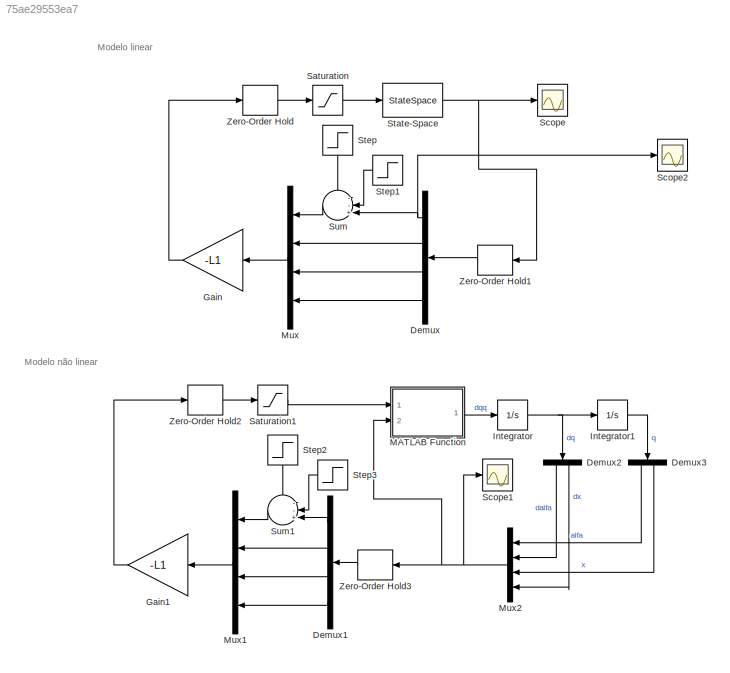
MODEL slx_75ae29553ea7
KIND model
CONFIG AbsTol = auto
CONFIG EnableMultiTasking = off
CONFIG FixedStep = auto
CONFIG MaxStep = auto
CONFIG MinStep = auto
CONFIG RelTol = 1e-3
CONFIG SampleTimeConstraint = Unconstrained
CONFIG SolverName = VariableStepAuto
CONFIG StartTime = 0.0
CONFIG StopTime = 15.0
BLOCK [Demux] Demux
  NameLocation = top
  Ports = [1, 4]
BLOCK [Demux] Demux1
  NameLocation = top
  Ports = [1, 4]
BLOCK [Demux] Demux2
  NameLocation = left
  Outputs = 2
  Ports = [1, 2]
BLOCK [Demux] Demux3
  NameLocation = left
  Outputs = 2
  Ports = [1, 2]
BLOCK [Gain] Gain
  Gain = -L1
  Multiplication = Matrix(K*u) (u vector)
  NameLocation = top
BLOCK [Gain] Gain1
  Gain = -L1
  Multiplication = Matrix(K*u) (u vector)
  NameLocation = top
BLOCK [Integrator] Integrator
  InitialCondition = qi([2,4])
  Ports = [1, 1]
BLOCK [Integrator] Integrator1
  InitialCondition = qi([1,3])
  Ports = [1, 1]
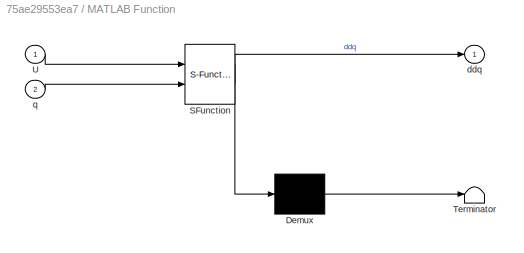
BLOCK [SubSystem] MATLAB Function
  ErrorFcn = Stateflow.Translate.translate
  PermitHierarchicalResolution = ExplicitOnly
  Ports = [2, 1]
  RequestExecContextInheritance = off
  SFBlockType = MATLAB Function
  TreatAsAtomicUnit = on
BLOCK [Demux] MATLAB Function/ Demux 
  Outputs = 1
  Ports = [1, 1]
BLOCK [S-Function] MATLAB Function/ SFunction 
  EnableBusSupport = on
  FunctionName = sf_sfun
  PortCounts = [2 2]
  Ports = [2, 2]
  SFcnIsStateOwnerBlock = off
  SFunctionDeploymentMode = off
  Tag = Stateflow S-Function 2
BLOCK [Terminator] MATLAB Function/ Terminator 
BLOCK [Inport] MATLAB Function/U
BLOCK [Outport] MATLAB Function/ddq
BLOCK [Inport] MATLAB Function/q
  Port = 2
BLOCK [Mux] Mux
  DisplayOption = bar
  NameLocation = top
  Ports = [4, 1]
BLOCK [Mux] Mux1
  DisplayOption = bar
  NameLocation = top
  Ports = [4, 1]
BLOCK [Mux] Mux2
  DisplayOption = bar
  NameLocation = top
  Ports = [4, 1]
BLOCK [Saturate] Saturation
  LowerLimit = -4.8
  UpperLimit = 4.8
BLOCK [Saturate] Saturation1
  LowerLimit = -4.8
  UpperLimit = 4.8
BLOCK [Scope] Scope
  Floating = off
  NumInputPorts = 1
  Ports = [1]
  ScopeSpecificationString = Simulink.scopes.TimeScopeBlockCfg('CurrentConfiguration', extmgr.ConfigurationSet(extmgr.Configuration('Core','General UI',true,'FigureColor',[1 1 1]),extmgr.Configuration('Core','Source UI',true),extmgr.Configuration('Sources','WiredSimulink',true),extmgr.Configuration('Visuals','Time Domain',true,'SerializedDisplays',{struct('MinYLimReal','-11.5171','MaxYLimReal','11.51899','YLabelReal','','MinY...<+1950ch>
BLOCK [Scope] Scope1
  Floating = off
  NumInputPorts = 1
  Ports = [1]
  ScopeSpecificationString = Simulink.scopes.TimeScopeBlockCfg('CurrentConfiguration', extmgr.ConfigurationSet(extmgr.Configuration('Core','General UI',true,'FigureColor',[1 1 1]),extmgr.Configuration('Core','Source UI',true),extmgr.Configuration('Sources','WiredSimulink',true,'DataLoggingVariableName','ScopeData1'),extmgr.Configuration('Visuals','Time Domain',true,'SerializedDisplays',{struct('MinYLimReal','-11.32281','MaxYL...<+1928ch>
BLOCK [Scope] Scope2
  Floating = off
  NumInputPorts = 1
  Ports = [1]
  ScopeSpecificationString = Simulink.scopes.TimeScopeBlockCfg('CurrentConfiguration', extmgr.ConfigurationSet(extmgr.Configuration('Core','General UI',true,'FigureColor',[1 1 1]),extmgr.Configuration('Core','Source UI',true),extmgr.Configuration('Sources','WiredSimulink',true,'DataLoggingVariableName','ScopeData1'),extmgr.Configuration('Visuals','Time Domain',true,'SerializedDisplays',{struct('MinYLimReal','-0.35405','MaxYLi...<+1930ch>
BLOCK [StateSpace] State-Space
  A = A
  B = B
  C = C
  D = D
  InitialCondition = qi
  Ports = [1, 1]
BLOCK [Step] Step
  After = deg2rad(10)
  NameLocation = left
  SampleTime = 0
  Time = 2
BLOCK [Step] Step1
  After = -deg2rad(10)
  NameLocation = top
  SampleTime = 0
  Time = 8
BLOCK [Step] Step2
  After = deg2rad(10)
  NameLocation = left
  SampleTime = 0
  Time = 2
BLOCK [Step] Step3
  After = -deg2rad(10)
  NameLocation = top
  SampleTime = 0
  Time = 8
BLOCK [Sum] Sum
  Inputs = --+||
  NameLocation = top
  Ports = [3, 1]
BLOCK [Sum] Sum1
  Inputs = --+||
  NameLocation = top
  Ports = [3, 1]
BLOCK [ZeroOrderHold] Zero-Order Hold
  SampleTime = h
BLOCK [ZeroOrderHold] Zero-Order Hold1
  NameLocation = top
  SampleTime = h
BLOCK [ZeroOrderHold] Zero-Order Hold2
  SampleTime = h
BLOCK [ZeroOrderHold] Zero-Order Hold3
  NameLocation = top
  SampleTime = h
ANNOTATION (root): Modelo linear
ANNOTATION (root): Modelo não linear
LINE Demux1:1 -> Sum1:3
LINE Demux1:2 -> Mux1:2
LINE Demux1:3 -> Mux1:3
LINE Demux1:4 -> Mux1:4
LINE Demux2:1 -> Mux2:2
LINE Demux2:2 -> Mux2:4
LINE Demux3:1 -> Mux2:1
LINE Demux3:2 -> Mux2:3
NET Demux:1 -> Scope2:1, Sum:3
LINE Demux:2 -> Mux:2
LINE Demux:3 -> Mux:3
LINE Demux:4 -> Mux:4
LINE Gain1:1 -> Zero-Order Hold2:1
LINE Gain:1 -> Zero-Order Hold:1
LINE Integrator1:1 -> Demux3:1
NET Integrator:1 -> Demux2:1, Integrator1:1
LINE MATLAB Function:1 -> Integrator:1
LINE Mux1:1 -> Gain1:1
NET Mux2:1 -> MATLAB Function:2, Scope1:1, Zero-Order Hold3:1
LINE Mux:1 -> Gain:1
LINE Saturation1:1 -> MATLAB Function:1
LINE Saturation:1 -> State-Space:1
NET State-Space:1 -> Scope:1, Zero-Order Hold1:1
LINE Step1:1 -> Sum:2
LINE Step2:1 -> Sum1:1
LINE Step3:1 -> Sum1:2
LINE Step:1 -> Sum:1
LINE Sum1:1 -> Mux1:1
LINE Sum:1 -> Mux:1
LINE Zero-Order Hold1:1 -> Demux:1
LINE Zero-Order Hold2:1 -> Saturation1:1
LINE Zero-Order Hold3:1 -> Demux1:1
LINE Zero-Order Hold:1 -> Saturation:1
note: NET lines group one-source signal fan-out (src -> all destinations, sorted); 1:1 wires keep LINE
CHART MATLAB Function states=1 transitions=1
  STATE_LABEL 'eML_blk_kernel()'
  STATE_LABEL 'SCRIPT:\nfunction ddq = fcn(U,q)\nRm = 14;\nKb = 0.1343;\nKt = 0.0948;\nL = 0.045;\nMp = 0.296;\nMw = 0.032;\nRw = 0.022;\nlp = 0;\nlw = 0.5*Mw*Rw^2;\ng = 9.81;\nh = 0.03;\n\nalfa = q(1);\ndalfa = q(2);\nx = q(3);\ndx= q(4);\n\n% dq = [ddalfa; ddx]\n% q = [da;dalfa]\n% A * dq = B*U + C*q + D\n% dq = inv(A)* (B*U + C*q + D)\n\nA = [\n    (lp+L^2*Mp) L*cos(alfa)*Mp\n    L*cos(alfa)*Mp*Rw (lw/Rw + Mp*Rw+Mw*Rw)\n];\nB = [\n  -Kt/...<+159ch>'
CHART  states=0 transitions=0
